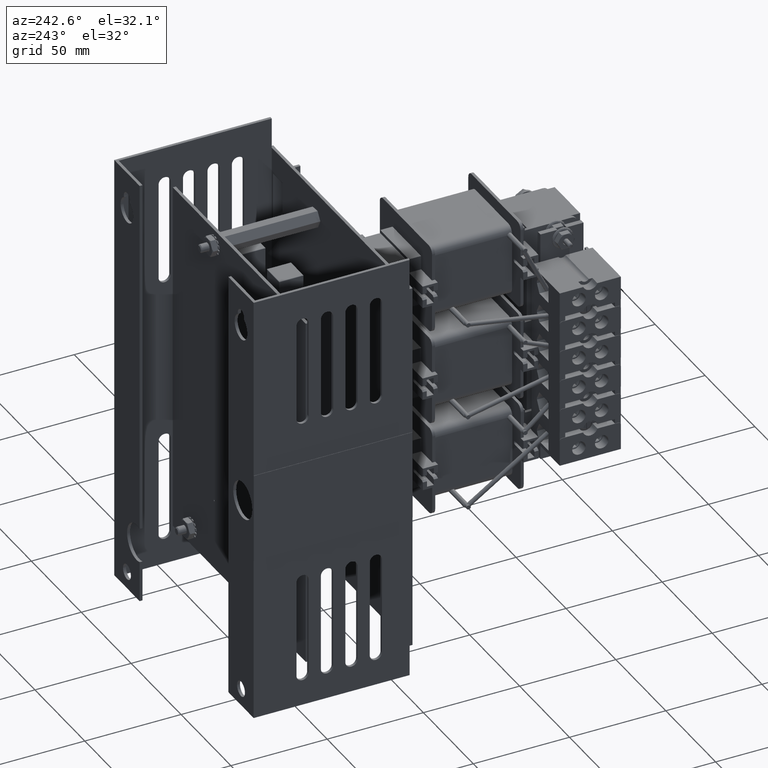
[diagram: clean part render]
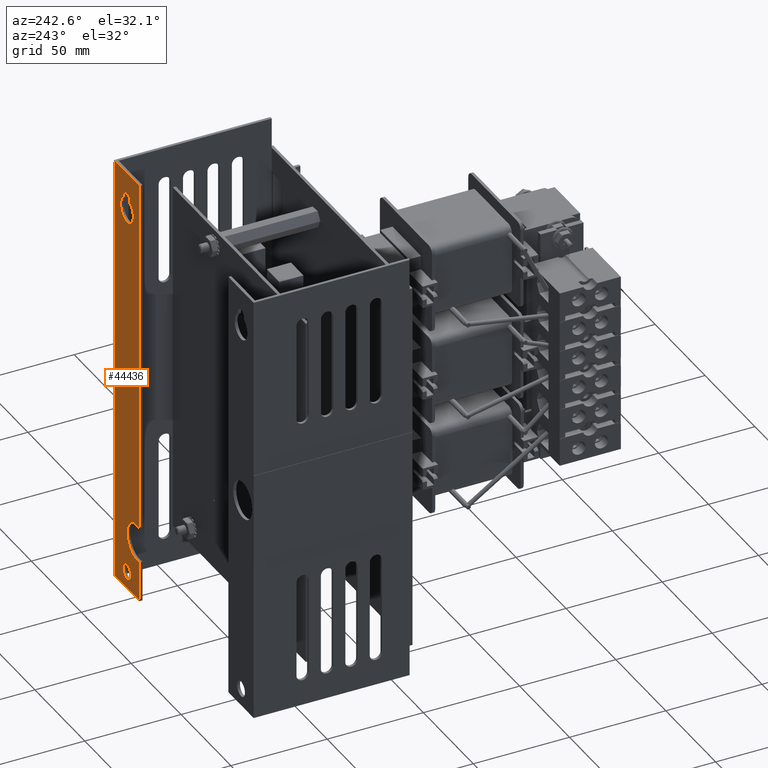
[diagram: same view with one face highlighted and labeled with its STEP entity id]
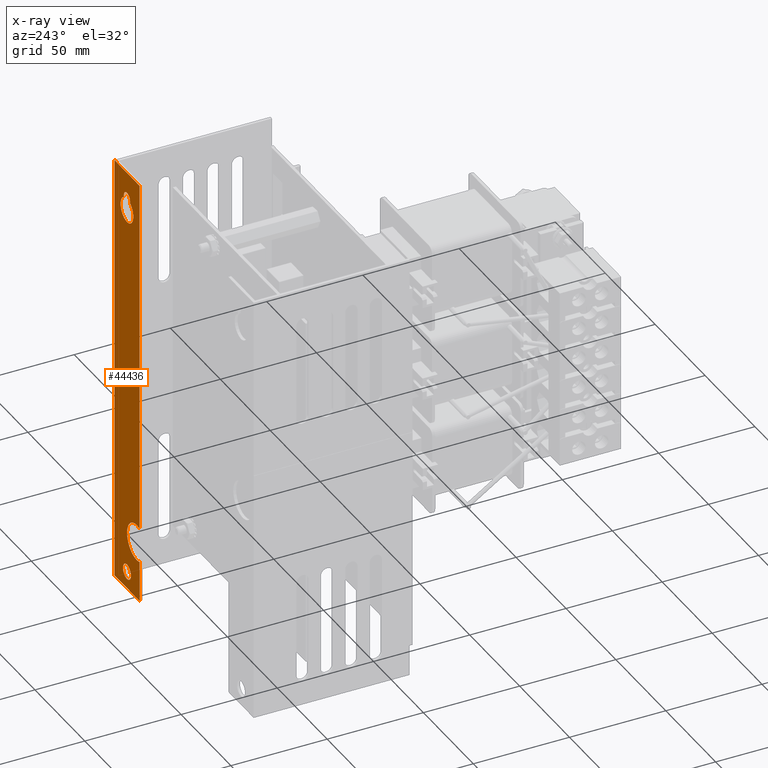
[diagram: x-ray of the same camera — body ghosted, the highlighted face saturated]
A machine part, auxiliary view. The second image highlights one B-rep face of the part: STEP entity #44436.
The next image is the same camera in x-ray: the body ghosted, the highlighted face saturated — about 0% of this face is hidden behind the body in this view.
In plain terms, the highlighted planar face has unit normal (0, 1, 0).
Its self-contained STEP definition (entity closure, byte-faithful):
#1163=FACE_BOUND('',#6742,.T.);
#1164=FACE_BOUND('',#6743,.T.);
#1534=PLANE('',#47648);
#4248=FACE_OUTER_BOUND('',#6741,.T.);
#6741=EDGE_LOOP('',(#31420,#31421,#31422,#31423,#31424,#31425));
#6742=EDGE_LOOP('',(#31426));
#6743=EDGE_LOOP('',(#31427,#31428));
#9637=LINE('',#63992,#14372);
#9638=LINE('',#63994,#14373);
#9639=LINE('',#63996,#14374);
#9640=LINE('',#63998,#14375);
#9641=LINE('',#63999,#14376);
#14372=VECTOR('',#51619,0.393700787401575);
#14373=VECTOR('',#51620,0.393700787401575);
#14374=VECTOR('',#51621,0.393700787401575);
#14375=VECTOR('',#51622,0.393700787401575);
#14376=VECTOR('',#51623,0.393700787401575);
#19065=CIRCLE('',#47649,0.375);
#19066=CIRCLE('',#47650,0.155);
#19067=CIRCLE('',#47651,0.25);
#19068=CIRCLE('',#47652,0.125);
#20471=VERTEX_POINT('',#63988);
#20472=VERTEX_POINT('',#63989);
#20473=VERTEX_POINT('',#63991);
#20474=VERTEX_POINT('',#63993);
#20475=VERTEX_POINT('',#63995);
#20476=VERTEX_POINT('',#63997);
#20477=VERTEX_POINT('',#64000);
#20478=VERTEX_POINT('',#64002);
#20479=VERTEX_POINT('',#64003);
#24820=EDGE_CURVE('',#20471,#20472,#19065,.T.);
#24821=EDGE_CURVE('',#20472,#20473,#9637,.T.);
#24822=EDGE_CURVE('',#20473,#20474,#9638,.T.);
#24823=EDGE_CURVE('',#20475,#20474,#9639,.T.);
#24824=EDGE_CURVE('',#20475,#20476,#9640,.T.);
#24825=EDGE_CURVE('',#20476,#20471,#9641,.T.);
#24826=EDGE_CURVE('',#20477,#20477,#19066,.T.);
#24827=EDGE_CURVE('',#20478,#20479,#19067,.T.);
#24828=EDGE_CURVE('',#20479,#20478,#19068,.T.);
#31420=ORIENTED_EDGE('',*,*,#24820,.T.);
#31421=ORIENTED_EDGE('',*,*,#24821,.T.);
#31422=ORIENTED_EDGE('',*,*,#24822,.T.);
#31423=ORIENTED_EDGE('',*,*,#24823,.F.);
#31424=ORIENTED_EDGE('',*,*,#24824,.T.);
#31425=ORIENTED_EDGE('',*,*,#24825,.T.);
#31426=ORIENTED_EDGE('',*,*,#24826,.T.);
#31427=ORIENTED_EDGE('',*,*,#24827,.T.);
#31428=ORIENTED_EDGE('',*,*,#24828,.T.);
#44436=ADVANCED_FACE('',(#4248,#1163,#1164),#1534,.T.);
#47648=AXIS2_PLACEMENT_3D('',#63987,#51615,#51616);
#47649=AXIS2_PLACEMENT_3D('',#63990,#51617,#51618);
#47650=AXIS2_PLACEMENT_3D('',#64001,#51624,#51625);
#47651=AXIS2_PLACEMENT_3D('',#64004,#51626,#51627);
#47652=AXIS2_PLACEMENT_3D('',#64005,#51628,#51629);
#51615=DIRECTION('center_axis',(0.,1.,0.));
#51616=DIRECTION('ref_axis',(0.,0.,1.));
#51617=DIRECTION('center_axis',(0.,-1.,0.));
#51618=DIRECTION('ref_axis',(-1.,0.,0.));
#51619=DIRECTION('',(0.,0.,1.));
#51620=DIRECTION('',(1.,0.,0.));
#51621=DIRECTION('',(0.,0.,1.));
#51622=DIRECTION('',(-1.,0.,0.));
#51623=DIRECTION('',(0.,0.,1.));
#51624=DIRECTION('center_axis',(0.,-1.,0.));
#51625=DIRECTION('ref_axis',(-1.,0.,0.));
#51626=DIRECTION('center_axis',(0.,-1.,0.));
#51627=DIRECTION('ref_axis',(-0.484122918275929,0.,-0.874999999999999));
#51628=DIRECTION('center_axis',(0.,-1.,0.));
#51629=DIRECTION('ref_axis',(0.968245836551852,0.,0.250000000000009));
#63987=CARTESIAN_POINT('Origin',(3.50248862693764,1.00042806389227,0.));
#63988=CARTESIAN_POINT('',(3.50248862693764,1.00042806389227,0.83471842153019));
#63989=CARTESIAN_POINT('',(3.50248862693764,1.00042806389227,1.54528157846981));
#63990=CARTESIAN_POINT('Origin',(3.62248862693764,1.00042806389227,1.19));
#63991=CARTESIAN_POINT('',(3.50248862693764,1.00042806389227,8.9));
#63992=CARTESIAN_POINT('',(3.50248862693764,1.00042806389227,0.));
#63993=CARTESIAN_POINT('',(4.50248862693764,1.00042806389227,8.9));
#63994=CARTESIAN_POINT('',(4.50248862693764,1.00042806389227,8.9));
#63995=CARTESIAN_POINT('',(4.50248862693764,1.00042806389227,0.));
#63996=CARTESIAN_POINT('',(4.50248862693764,1.00042806389227,0.));
#63997=CARTESIAN_POINT('',(3.50248862693764,1.00042806389227,0.));
#63998=CARTESIAN_POINT('',(4.50248862693764,1.00042806389227,0.));
#63999=CARTESIAN_POINT('',(3.50248862693764,1.00042806389227,0.));
#64000=CARTESIAN_POINT('',(4.15748862693764,1.00042806389227,0.35));
#64001=CARTESIAN_POINT('Origin',(4.00248862693764,1.00042806389227,0.35));
#64002=CARTESIAN_POINT('',(3.88145789736866,1.00042806389227,8.31875));
#64003=CARTESIAN_POINT('',(4.12351935650662,1.00042806389227,8.31875));
#64004=CARTESIAN_POINT('Origin',(4.00248862693764,1.00042806389227,8.1));
#64005=CARTESIAN_POINT('Origin',(4.00248862693764,1.00042806389227,8.35));